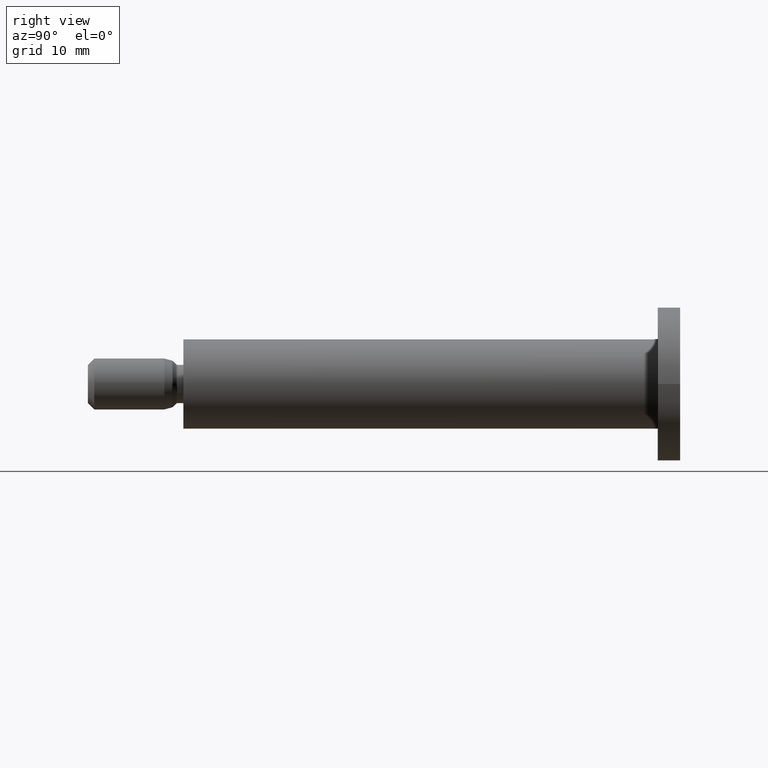
[diagram: clean part render]
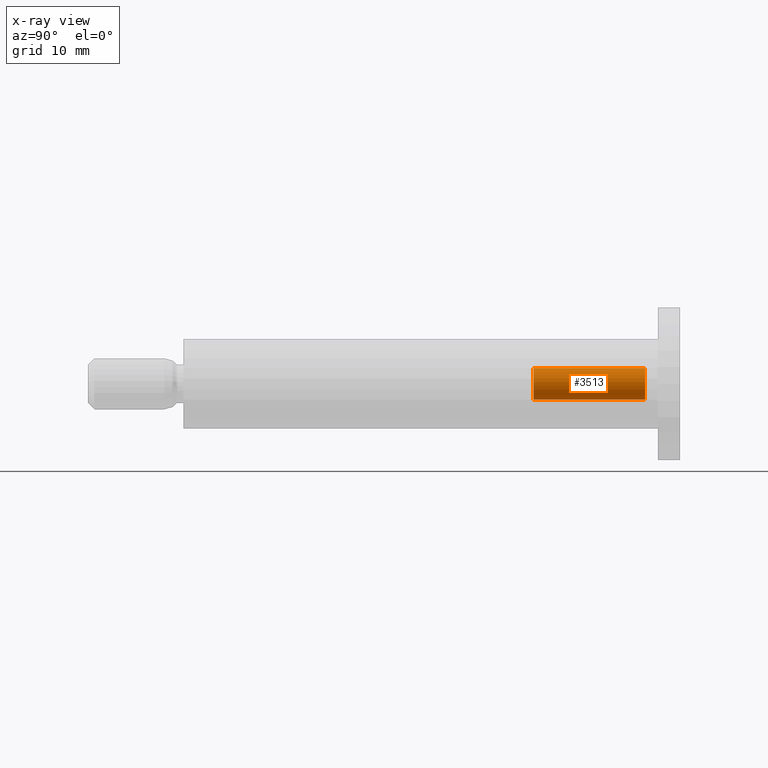
[diagram: x-ray — body ghosted, one internal face saturated and labeled with its STEP entity id]
A machine part, right view, then the same camera in x-ray: the body is ghosted and one INTERNAL B-rep face — a face not visible from any outside direction — is saturated and labeled: STEP entity #3513.
In plain terms, the highlighted cylindrical surface (bore or boss wall) has radius 2.5 mm, axis along (0, 1, 0).
Its self-contained STEP definition (entity closure, byte-faithful):
#263 = FACE_OUTER_BOUND ( 'NONE', #6195, .T. ) ;
#279 = EDGE_CURVE ( 'NONE', #720, #720, #446, .T. ) ;
#446 = CIRCLE ( 'NONE', #4829, 2.499999999999997335 ) ;
#720 = VERTEX_POINT ( 'NONE', #8652 ) ;
#1730 = ORIENTED_EDGE ( 'NONE', *, *, #9240, .F. ) ;
#2660 = CARTESIAN_POINT ( 'NONE',  ( 0.000000000000000000, 54.99999999999999289, 0.000000000000000000 ) ) ;
#2923 = AXIS2_PLACEMENT_3D ( 'NONE', #2660, #12230, #5945 ) ;
#3186 = CARTESIAN_POINT ( 'NONE',  ( 0.000000000000000000, 54.99999999999999289, 2.499999999999994671 ) ) ;
#3513 = ADVANCED_FACE ( 'NONE', ( #10496, #263 ), #11680, .F. ) ;
#4577 = CIRCLE ( 'NONE', #2923, 2.499999999999994671 ) ;
#4680 = AXIS2_PLACEMENT_3D ( 'NONE', #12889, #10644, #12563 ) ;
#4829 = AXIS2_PLACEMENT_3D ( 'NONE', #12492, #12622, #9326 ) ;
#5945 = DIRECTION ( 'NONE',  ( 0.000000000000000000, 0.000000000000000000, 1.000000000000000000 ) ) ;
#6195 = EDGE_LOOP ( 'NONE', ( #1730 ) ) ;
#8652 = CARTESIAN_POINT ( 'NONE',  ( 0.000000000000000000, 72.50000000000000000, 2.499999999999997335 ) ) ;
#9240 = EDGE_CURVE ( 'NONE', #10128, #10128, #4577, .T. ) ;
#9326 = DIRECTION ( 'NONE',  ( 0.000000000000000000, 0.000000000000000000, 1.000000000000000000 ) ) ;
#10128 = VERTEX_POINT ( 'NONE', #3186 ) ;
#10194 = EDGE_LOOP ( 'NONE', ( #11839 ) ) ;
#10496 = FACE_OUTER_BOUND ( 'NONE', #10194, .T. ) ;
#10644 = DIRECTION ( 'NONE',  ( -0.000000000000000000, 1.000000000000000000, -0.000000000000000000 ) ) ;
#11680 = CYLINDRICAL_SURFACE ( 'NONE', #4680, 2.499999999999992895 ) ;
#11839 = ORIENTED_EDGE ( 'NONE', *, *, #279, .T. ) ;
#12230 = DIRECTION ( 'NONE',  ( -0.000000000000000000, 1.000000000000000000, -0.000000000000000000 ) ) ;
#12492 = CARTESIAN_POINT ( 'NONE',  ( 0.000000000000000000, 72.50000000000000000, 0.000000000000000000 ) ) ;
#12563 = DIRECTION ( 'NONE',  ( 0.000000000000000000, 0.000000000000000000, 1.000000000000000000 ) ) ;
#12622 = DIRECTION ( 'NONE',  ( -0.000000000000000000, 1.000000000000000000, -0.000000000000000000 ) ) ;
#12889 = CARTESIAN_POINT ( 'NONE',  ( 0.000000000000000000, 75.00000000000000000, 0.000000000000000000 ) ) ;